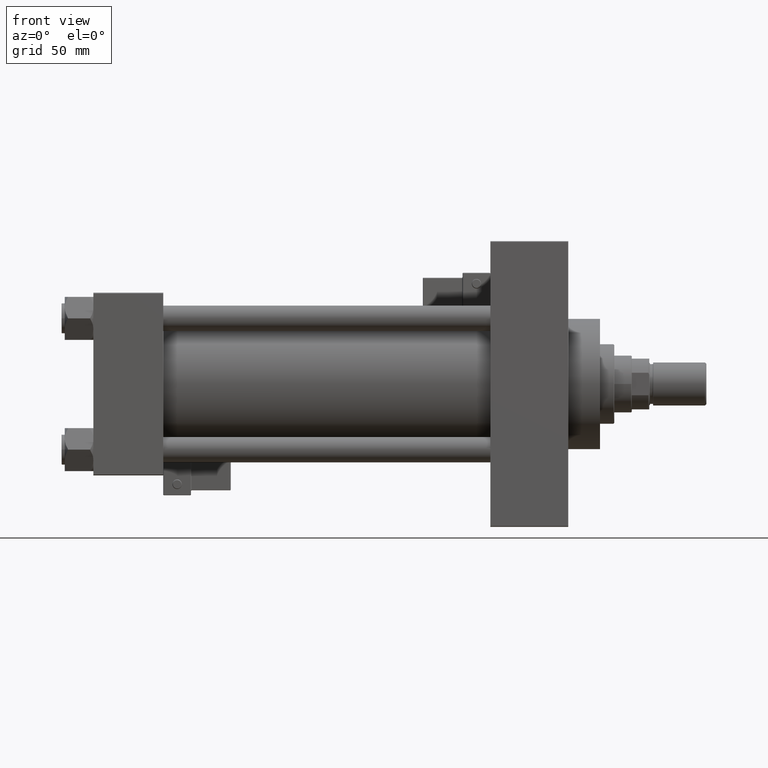
[diagram: clean part render]
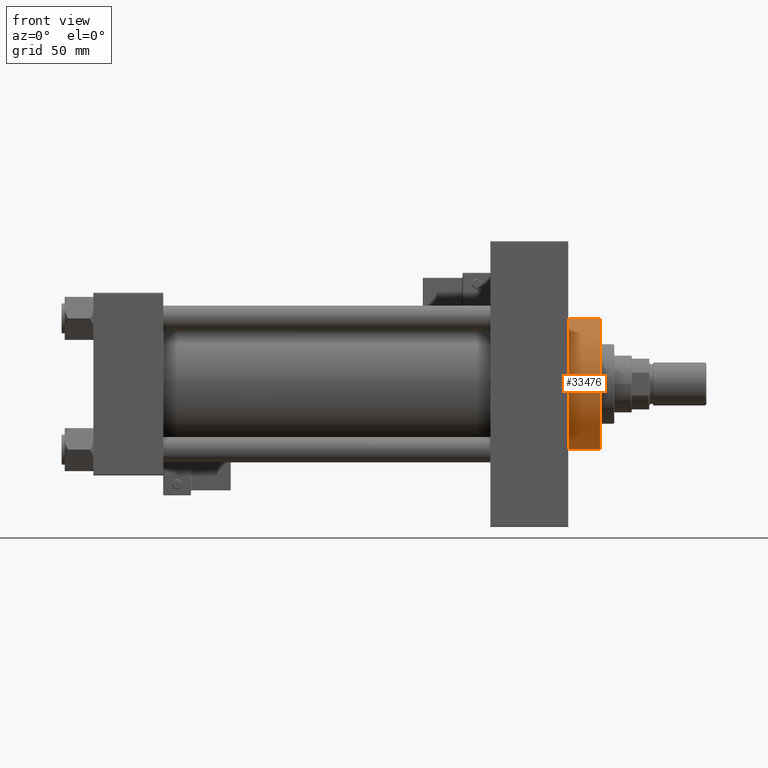
[diagram: same view with one face highlighted and labeled with its STEP entity id]
A machine part, front view. The second image highlights one B-rep face of the part: STEP entity #33476.
In plain terms, the highlighted cylindrical surface (partial cylindrical patch) has radius 41 mm, axis along (-1, -0, -0).
Its self-contained STEP definition (entity closure, byte-faithful):
#4446 = CARTESIAN_POINT ( 'NONE',  ( 299.0000000000000000, 5.021051876504148963E-15, -41.00000000000000000 ) ) ;
#8046 = CARTESIAN_POINT ( 'NONE',  ( 319.0000000000000000, 0.000000000000000000, 41.00000000000000000 ) ) ;
#9420 = VECTOR ( 'NONE', #19389, 1000.000000000000000 ) ;
#10852 = DIRECTION ( 'NONE',  ( -1.000000000000000000, -0.000000000000000000, -0.000000000000000000 ) ) ;
#11298 = VERTEX_POINT ( 'NONE', #39338 ) ;
#14572 = CARTESIAN_POINT ( 'NONE',  ( 319.0000000000000000, 0.000000000000000000, 0.000000000000000000 ) ) ;
#15059 = VECTOR ( 'NONE', #17077, 1000.000000000000000 ) ;
#15137 = LINE ( 'NONE', #31320, #9420 ) ;
#17077 = DIRECTION ( 'NONE',  ( -1.000000000000000000, -0.000000000000000000, -0.000000000000000000 ) ) ;
#17132 = EDGE_LOOP ( 'NONE', ( #44727, #19695, #19439, #32304 ) ) ;
#19084 = CIRCLE ( 'NONE', #52152, 41.00000000000000000 ) ;
#19389 = DIRECTION ( 'NONE',  ( -1.000000000000000000, -0.000000000000000000, -0.000000000000000000 ) ) ;
#19439 = ORIENTED_EDGE ( 'NONE', *, *, #42628, .T. ) ;
#19695 = ORIENTED_EDGE ( 'NONE', *, *, #38491, .F. ) ;
#20163 = AXIS2_PLACEMENT_3D ( 'NONE', #27030, #47211, #31551 ) ;
#20584 = CARTESIAN_POINT ( 'NONE',  ( 319.0000000000000000, 0.000000000000000000, 41.00000000000000000 ) ) ;
#20779 = LINE ( 'NONE', #8046, #15059 ) ;
#23040 = DIRECTION ( 'NONE',  ( 0.000000000000000000, 0.000000000000000000, 1.000000000000000000 ) ) ;
#24756 = DIRECTION ( 'NONE',  ( 0.000000000000000000, 0.000000000000000000, -1.000000000000000000 ) ) ;
#25118 = EDGE_CURVE ( 'NONE', #25522, #48905, #15137, .T. ) ;
#25522 = VERTEX_POINT ( 'NONE', #45514 ) ;
#27030 = CARTESIAN_POINT ( 'NONE',  ( 299.0000000000000000, 0.000000000000000000, 0.000000000000000000 ) ) ;
#28482 = CARTESIAN_POINT ( 'NONE',  ( 319.0000000000000000, 0.000000000000000000, 0.000000000000000000 ) ) ;
#29971 = CYLINDRICAL_SURFACE ( 'NONE', #30074, 41.00000000000000000 ) ;
#30074 = AXIS2_PLACEMENT_3D ( 'NONE', #14572, #10852, #23040 ) ;
#31320 = CARTESIAN_POINT ( 'NONE',  ( 319.0000000000000000, 5.021051876504148963E-15, -41.00000000000000000 ) ) ;
#31551 = DIRECTION ( 'NONE',  ( 0.000000000000000000, 0.000000000000000000, -1.000000000000000000 ) ) ;
#32304 = ORIENTED_EDGE ( 'NONE', *, *, #46861, .T. ) ;
#33476 = ADVANCED_FACE ( 'NONE', ( #42191 ), #29971, .T. ) ;
#36713 = DIRECTION ( 'NONE',  ( 1.000000000000000000, 0.000000000000000000, 0.000000000000000000 ) ) ;
#37441 = VERTEX_POINT ( 'NONE', #20584 ) ;
#38491 = EDGE_CURVE ( 'NONE', #37441, #25522, #19084, .T. ) ;
#39338 = CARTESIAN_POINT ( 'NONE',  ( 299.0000000000000000, 0.000000000000000000, 41.00000000000000000 ) ) ;
#42191 = FACE_OUTER_BOUND ( 'NONE', #17132, .T. ) ;
#42628 = EDGE_CURVE ( 'NONE', #37441, #11298, #20779, .T. ) ;
#44727 = ORIENTED_EDGE ( 'NONE', *, *, #25118, .F. ) ;
#45514 = CARTESIAN_POINT ( 'NONE',  ( 319.0000000000000000, 5.021051876504148963E-15, -41.00000000000000000 ) ) ;
#46861 = EDGE_CURVE ( 'NONE', #11298, #48905, #49961, .T. ) ;
#47211 = DIRECTION ( 'NONE',  ( 1.000000000000000000, 0.000000000000000000, 0.000000000000000000 ) ) ;
#48905 = VERTEX_POINT ( 'NONE', #4446 ) ;
#49961 = CIRCLE ( 'NONE', #20163, 41.00000000000000000 ) ;
#52152 = AXIS2_PLACEMENT_3D ( 'NONE', #28482, #36713, #24756 ) ;